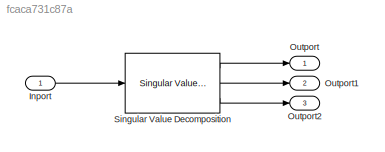
MODEL slx_fcaca731c87a
KIND model
CONFIG AbsTol = auto
CONFIG EnableMultiTasking = off
CONFIG FixedStep = auto
CONFIG MaxStep = auto
CONFIG MinStep = auto
CONFIG RelTol = 1e-3
CONFIG SampleTimeConstraint = Unconstrained
CONFIG SolverName = VariableStepAuto
CONFIG StartTime = 0.0
CONFIG StopTime = 10.0
BLOCK [Inport] Inport
  PortDimensions = [10,5]
BLOCK [Outport] Outport
BLOCK [Outport] Outport1
  Port = 2
BLOCK [Outport] Outport2
  Port = 3
BLOCK [Reference] Singular Value Decomposition  REF=dspfactors/Singular Value
Decomposition
  Ports = [1, 3]
  SourceBlock = dspfactors/Singular Value\nDecomposition
  SourceProductBaseCode = DS
  SourceType = Singular Value Decomposition
LINE Inport:1 -> Singular Value Decomposition:1
LINE Singular Value Decomposition:1 -> Outport:1
LINE Singular Value Decomposition:2 -> Outport1:1
LINE Singular Value Decomposition:3 -> Outport2:1
